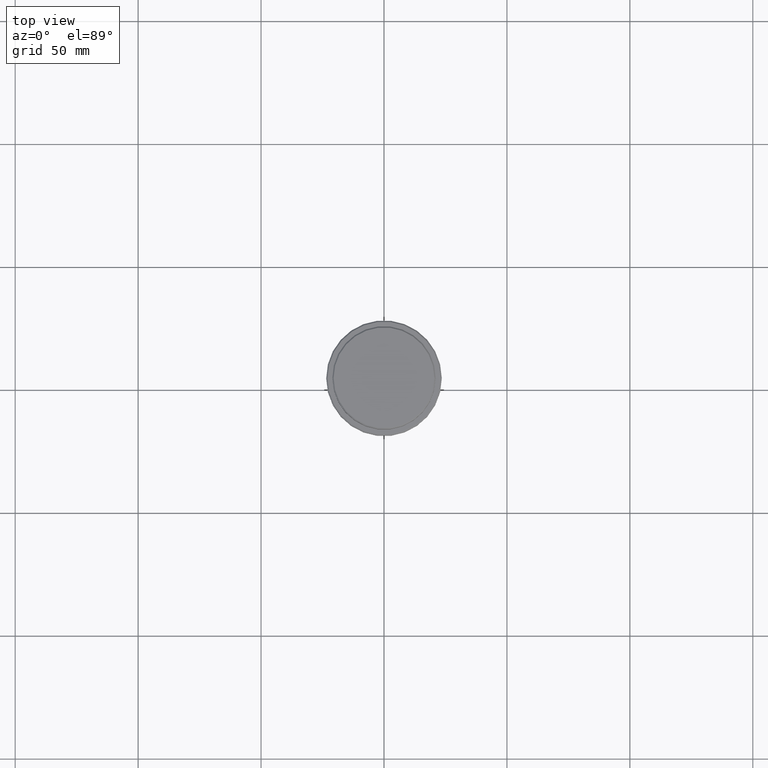
[diagram: clean part render]
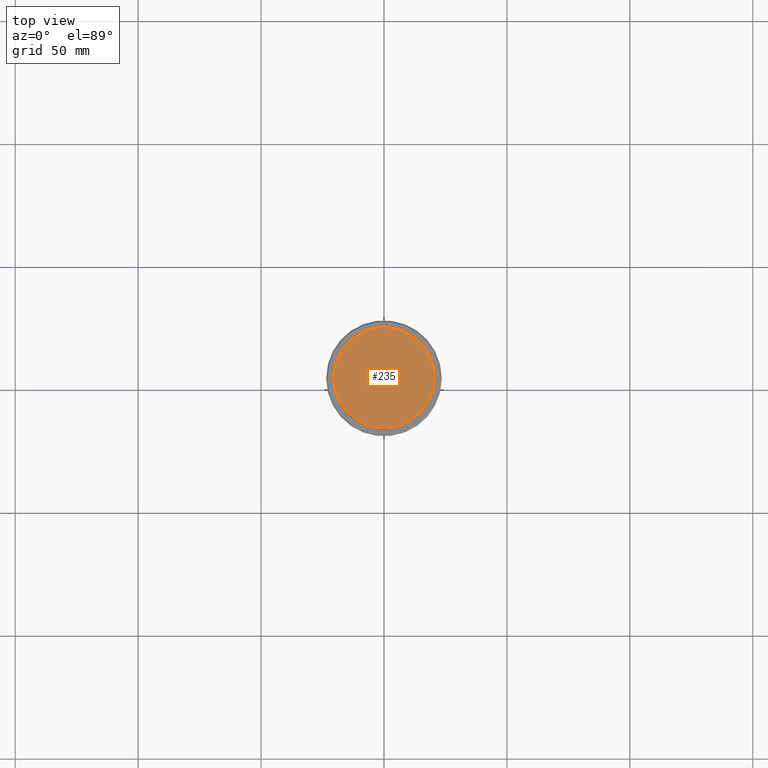
[diagram: same view with one face highlighted and labeled with its STEP entity id]
A machine part, top view. The second image highlights one B-rep face of the part: STEP entity #235.
In plain terms, the highlighted planar face has unit normal (0, -0, 1).
Its self-contained STEP definition (entity closure, byte-faithful):
#235 = ADVANCED_FACE ( 'NONE', ( #1231 ), #1137, .T. ) ;
#314 = CIRCLE ( 'NONE', #413, 20.49999999999990763 ) ;
#337 = EDGE_LOOP ( 'NONE', ( #1047, #796 ) ) ;
#406 = DIRECTION ( 'NONE',  ( 1.000000000000000000, 0.000000000000000000, 0.000000000000000000 ) ) ;
#413 = AXIS2_PLACEMENT_3D ( 'NONE', #631, #1061, #1209 ) ;
#424 = DIRECTION ( 'NONE',  ( -0.000000000000000000, -0.000000000000000000, 1.000000000000000000 ) ) ;
#472 = EDGE_CURVE ( 'NONE', #868, #866, #871, .T. ) ;
#603 = CARTESIAN_POINT ( 'NONE',  ( 0.000000000000000000, 0.000000000000000000, 0.000000000000000000 ) ) ;
#631 = CARTESIAN_POINT ( 'NONE',  ( 0.000000000000000000, 0.000000000000000000, 0.000000000000000000 ) ) ;
#692 = AXIS2_PLACEMENT_3D ( 'NONE', #1278, #424, #406 ) ;
#796 = ORIENTED_EDGE ( 'NONE', *, *, #973, .T. ) ;
#866 = VERTEX_POINT ( 'NONE', #1078 ) ;
#868 = VERTEX_POINT ( 'NONE', #1257 ) ;
#871 = CIRCLE ( 'NONE', #692, 20.49999999999990763 ) ;
#973 = EDGE_CURVE ( 'NONE', #866, #868, #314, .T. ) ;
#1047 = ORIENTED_EDGE ( 'NONE', *, *, #472, .T. ) ;
#1061 = DIRECTION ( 'NONE',  ( -0.000000000000000000, -0.000000000000000000, 1.000000000000000000 ) ) ;
#1078 = CARTESIAN_POINT ( 'NONE',  ( 20.49999999999990763, 2.541142108230752352E-15, 0.000000000000000000 ) ) ;
#1137 = PLANE ( 'NONE',  #1265 ) ;
#1209 = DIRECTION ( 'NONE',  ( 1.000000000000000000, 0.000000000000000000, 0.000000000000000000 ) ) ;
#1231 = FACE_OUTER_BOUND ( 'NONE', #337, .T. ) ;
#1242 = DIRECTION ( 'NONE',  ( 0.000000000000000000, -0.000000000000000000, 1.000000000000000000 ) ) ;
#1257 = CARTESIAN_POINT ( 'NONE',  ( -20.49999999999990763, 0.000000000000000000, 0.000000000000000000 ) ) ;
#1265 = AXIS2_PLACEMENT_3D ( 'NONE', #603, #1242, #1364 ) ;
#1278 = CARTESIAN_POINT ( 'NONE',  ( 0.000000000000000000, 0.000000000000000000, 0.000000000000000000 ) ) ;
#1364 = DIRECTION ( 'NONE',  ( 1.000000000000000000, 0.000000000000000000, 0.000000000000000000 ) ) ;